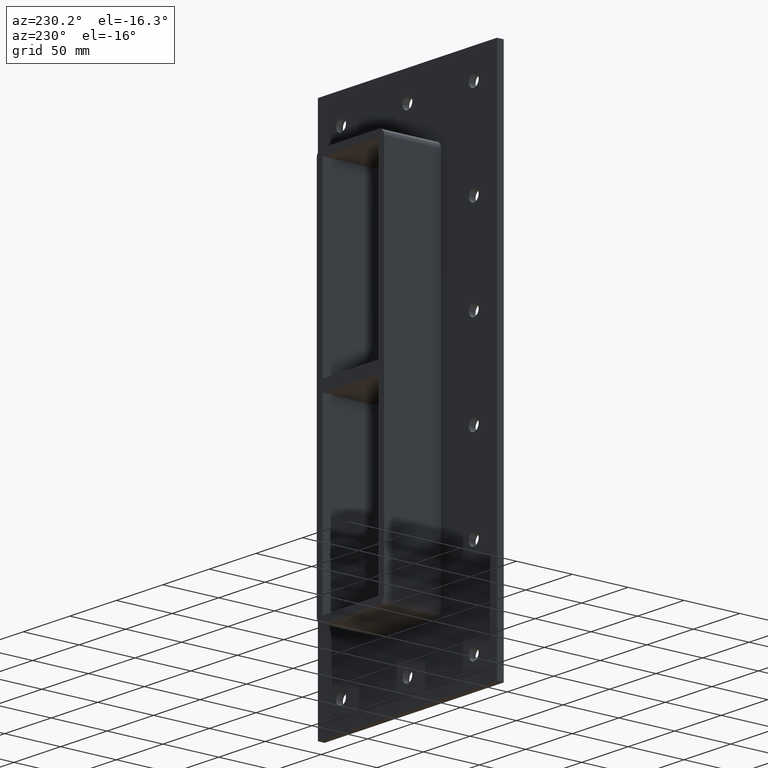
[diagram: clean part render]
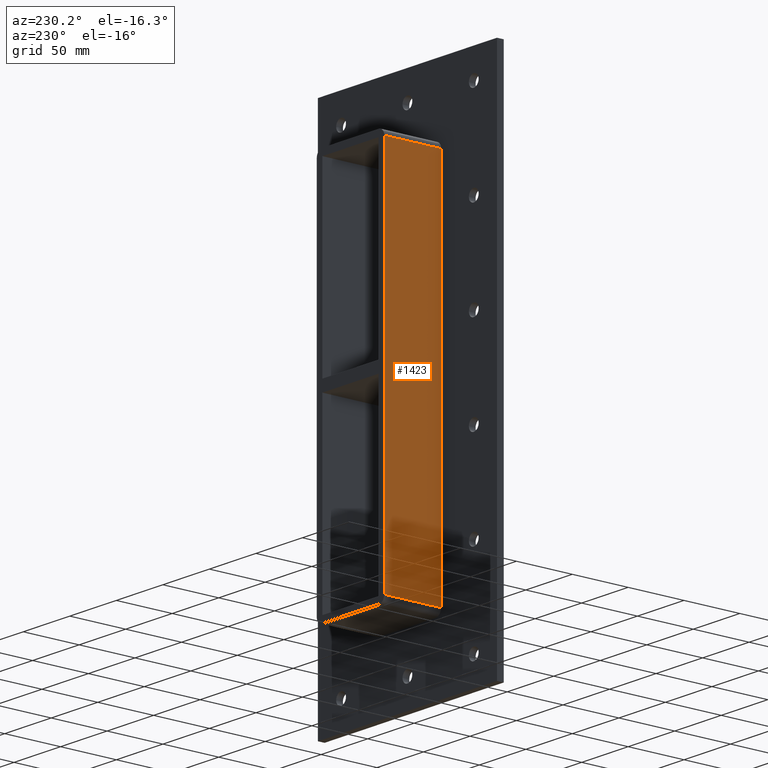
[diagram: same view with one face highlighted and labeled with its STEP entity id]
A machine part, auxiliary view. The second image highlights one B-rep face of the part: STEP entity #1423.
In plain terms, the highlighted planar face has unit normal (-1, 0, 0).
Its self-contained STEP definition (entity closure, byte-faithful):
#716=CARTESIAN_POINT('',(-36.250000000000007,6.000000000000001,-164.49999999999994));
#717=VERTEX_POINT('',#716);
#767=CARTESIAN_POINT('',(-36.250000000000007,6.000000000000001,164.50000000000003));
#768=VERTEX_POINT('',#767);
#776=CARTESIAN_POINT('',(-36.250000000000007,6.000000000000001,-164.49999999999994));
#777=DIRECTION('',(0.0,0.0,1.0));
#778=VECTOR('',#777,329.0);
#779=LINE('',#776,#778);
#780=EDGE_CURVE('',#717,#768,#779,.T.);
#1381=CARTESIAN_POINT('',(-36.250000000000007,57.0,-164.49999999999994));
#1382=VERTEX_POINT('',#1381);
#1383=CARTESIAN_POINT('',(-36.250000000000007,6.000000000000001,-164.49999999999994));
#1384=DIRECTION('',(0.0,1.0,0.0));
#1385=VECTOR('',#1384,51.0);
#1386=LINE('',#1383,#1385);
#1387=EDGE_CURVE('',#717,#1382,#1386,.T.);
#1400=CARTESIAN_POINT('',(-36.250000000000007,0.0,-170.49999999999997));
#1401=DIRECTION('',(-1.0,0.0,0.0));
#1402=DIRECTION('',(0.0,0.0,1.0));
#1403=AXIS2_PLACEMENT_3D('',#1400,#1401,#1402);
#1404=PLANE('',#1403);
#1405=ORIENTED_EDGE('',*,*,#780,.T.);
#1406=CARTESIAN_POINT('',(-36.250000000000007,57.0,164.50000000000003));
#1407=VERTEX_POINT('',#1406);
#1408=CARTESIAN_POINT('',(-36.250000000000007,57.0,164.50000000000003));
#1409=DIRECTION('',(0.0,-1.0,0.0));
#1410=VECTOR('',#1409,51.0);
#1411=LINE('',#1408,#1410);
#1412=EDGE_CURVE('',#1407,#768,#1411,.T.);
#1413=ORIENTED_EDGE('',*,*,#1412,.F.);
#1414=CARTESIAN_POINT('',(-36.250000000000007,57.0,-164.49999999999994));
#1415=DIRECTION('',(0.0,0.0,1.0));
#1416=VECTOR('',#1415,329.0);
#1417=LINE('',#1414,#1416);
#1418=EDGE_CURVE('',#1382,#1407,#1417,.T.);
#1419=ORIENTED_EDGE('',*,*,#1418,.F.);
#1420=ORIENTED_EDGE('',*,*,#1387,.F.);
#1421=EDGE_LOOP('',(#1405,#1413,#1419,#1420));
#1422=FACE_OUTER_BOUND('',#1421,.T.);
#1423=ADVANCED_FACE('',(#1422),#1404,.T.);